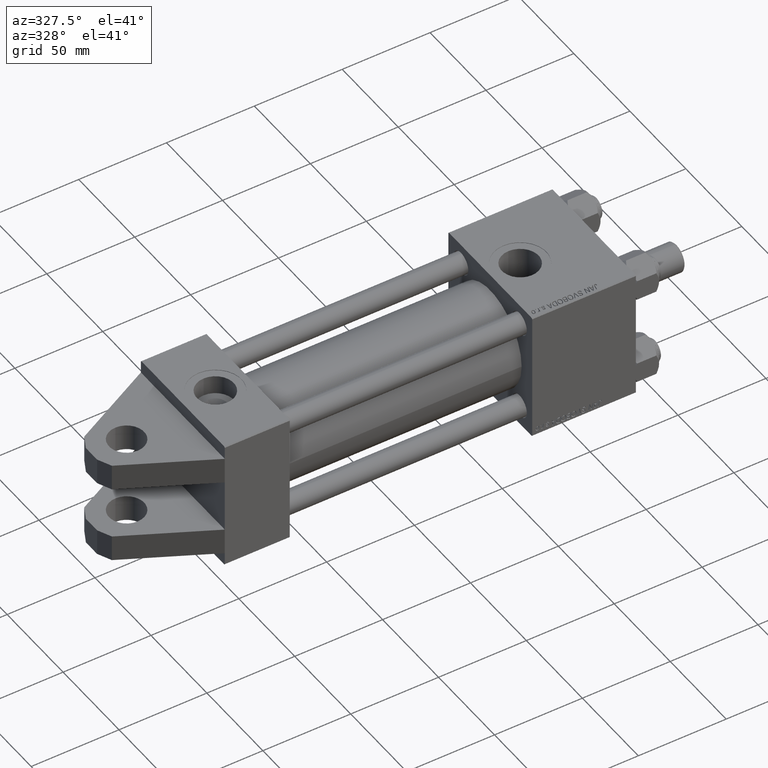
[diagram: clean part render]
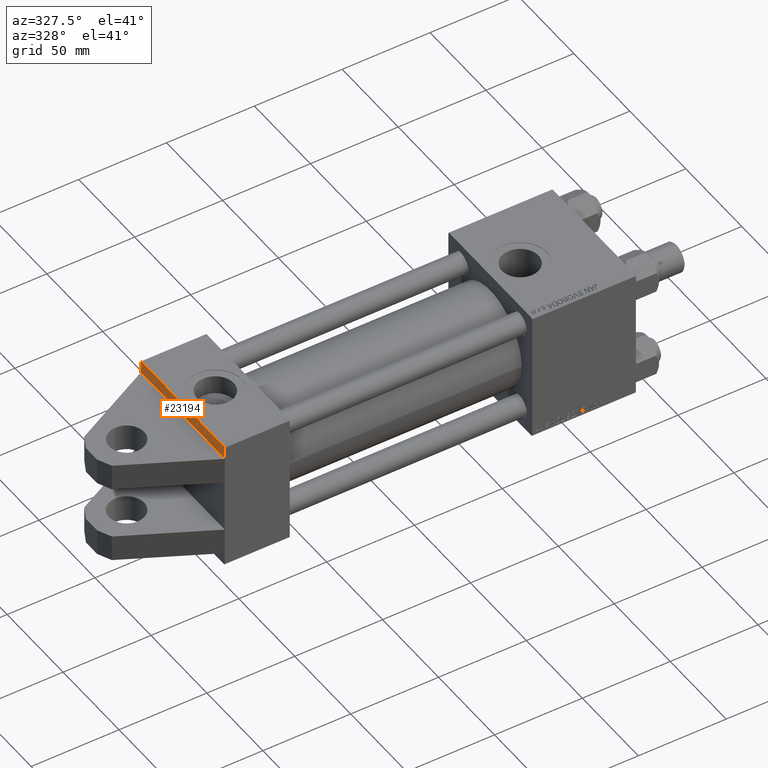
[diagram: same view with one face highlighted and labeled with its STEP entity id]
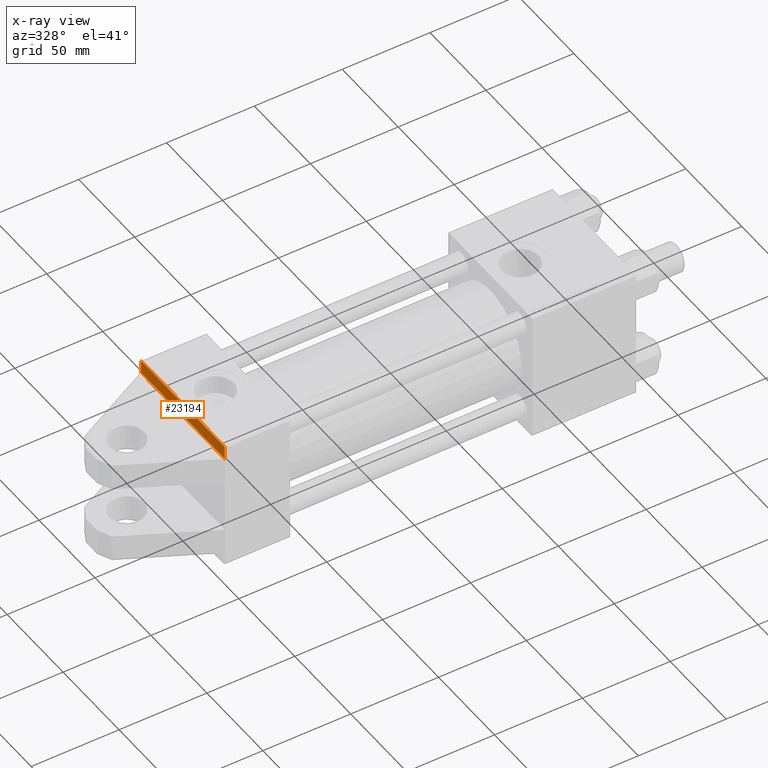
[diagram: x-ray of the same camera — body ghosted, the highlighted face saturated]
A machine part, auxiliary view. The second image highlights one B-rep face of the part: STEP entity #23194.
The next image is the same camera in x-ray: the body ghosted, the highlighted face saturated — about 0% of this face is hidden behind the body in this view.
In plain terms, the highlighted planar face has unit normal (-1, 0, -0).
Its self-contained STEP definition (entity closure, byte-faithful):
#464 = DIRECTION ( 'NONE',  ( -0.000000000000000000, 0.7071067811865474617, 0.7071067811865474617 ) ) ;
#585 = VERTEX_POINT ( 'NONE', #4168 ) ;
#1400 = CARTESIAN_POINT ( 'NONE',  ( 0.000000000000000000, -37.50000000000000711, 36.99999999999999289 ) ) ;
#1754 = VECTOR ( 'NONE', #51921, 1000.000000000000000 ) ;
#2162 = DIRECTION ( 'NONE',  ( 0.000000000000000000, 0.000000000000000000, -1.000000000000000000 ) ) ;
#3418 = VECTOR ( 'NONE', #464, 1000.000000000000114 ) ;
#4168 = CARTESIAN_POINT ( 'NONE',  ( 0.000000000000000000, -37.00000000000000711, 37.49999999999999289 ) ) ;
#4525 = VERTEX_POINT ( 'NONE', #47174 ) ;
#5417 = EDGE_CURVE ( 'NONE', #36524, #585, #40821, .T. ) ;
#6728 = DIRECTION ( 'NONE',  ( -0.000000000000000000, 0.000000000000000000, 1.000000000000000000 ) ) ;
#8374 = VECTOR ( 'NONE', #48611, 1000.000000000000000 ) ;
#9341 = LINE ( 'NONE', #21710, #47889 ) ;
#10770 = VECTOR ( 'NONE', #23887, 1000.000000000000000 ) ;
#12340 = LINE ( 'NONE', #35829, #1754 ) ;
#14295 = VERTEX_POINT ( 'NONE', #49032 ) ;
#17722 = ORIENTED_EDGE ( 'NONE', *, *, #32757, .T. ) ;
#19150 = LINE ( 'NONE', #27582, #10770 ) ;
#21710 = CARTESIAN_POINT ( 'NONE',  ( 0.000000000000000000, -37.24999999999975842, -37.25000000000027001 ) ) ;
#23194 = ADVANCED_FACE ( 'NONE', ( #50533 ), #45789, .T. ) ;
#23232 = ORIENTED_EDGE ( 'NONE', *, *, #38763, .F. ) ;
#23887 = DIRECTION ( 'NONE',  ( 0.000000000000000000, -1.000000000000000000, -9.251858538542971581E-17 ) ) ;
#24822 = ORIENTED_EDGE ( 'NONE', *, *, #27726, .F. ) ;
#26674 = CARTESIAN_POINT ( 'NONE',  ( 0.000000000000000000, -30.00000000000000000, 37.49999999999999289 ) ) ;
#27582 = CARTESIAN_POINT ( 'NONE',  ( 0.000000000000000000, 37.49999999999999289, 37.50000000000000000 ) ) ;
#27700 = EDGE_LOOP ( 'NONE', ( #37758, #17722, #48812, #23232, #32693, #24822 ) ) ;
#27726 = EDGE_CURVE ( 'NONE', #4525, #585, #19150, .T. ) ;
#29066 = CARTESIAN_POINT ( 'NONE',  ( 0.000000000000000000, 37.49999999999999289, -37.50000000000000000 ) ) ;
#30280 = EDGE_CURVE ( 'NONE', #35514, #14295, #9341, .T. ) ;
#30385 = CARTESIAN_POINT ( 'NONE',  ( 0.000000000000000000, -37.00000000000002132, -37.50000000000000711 ) ) ;
#32512 = LINE ( 'NONE', #29066, #8374 ) ;
#32638 = CARTESIAN_POINT ( 'NONE',  ( -0.000000000000000000, -37.25000000000000000, 37.25000000000000000 ) ) ;
#32693 = ORIENTED_EDGE ( 'NONE', *, *, #5417, .T. ) ;
#32757 = EDGE_CURVE ( 'NONE', #46220, #35514, #32512, .T. ) ;
#34432 = CARTESIAN_POINT ( 'NONE',  ( 0.000000000000000000, 0.000000000000000000, 0.000000000000000000 ) ) ;
#35514 = VERTEX_POINT ( 'NONE', #30385 ) ;
#35829 = CARTESIAN_POINT ( 'NONE',  ( 0.000000000000000000, -37.50000000000000711, 37.49999999999999289 ) ) ;
#36524 = VERTEX_POINT ( 'NONE', #1400 ) ;
#37758 = ORIENTED_EDGE ( 'NONE', *, *, #46256, .T. ) ;
#38311 = LINE ( 'NONE', #26674, #46674 ) ;
#38763 = EDGE_CURVE ( 'NONE', #36524, #14295, #12340, .T. ) ;
#40821 = LINE ( 'NONE', #32638, #3418 ) ;
#41245 = DIRECTION ( 'NONE',  ( 0.000000000000000000, -0.7071067811865524577, 0.7071067811865426878 ) ) ;
#41818 = DIRECTION ( 'NONE',  ( -1.000000000000000000, 0.000000000000000000, -0.000000000000000000 ) ) ;
#45789 = PLANE ( 'NONE',  #49361 ) ;
#45948 = CARTESIAN_POINT ( 'NONE',  ( 0.000000000000000000, -30.00000000000000000, -37.50000000000000711 ) ) ;
#46220 = VERTEX_POINT ( 'NONE', #45948 ) ;
#46256 = EDGE_CURVE ( 'NONE', #4525, #46220, #38311, .T. ) ;
#46674 = VECTOR ( 'NONE', #2162, 1000.000000000000000 ) ;
#47174 = CARTESIAN_POINT ( 'NONE',  ( 0.000000000000000000, -30.00000000000001421, 37.49999999999999289 ) ) ;
#47889 = VECTOR ( 'NONE', #41245, 1000.000000000000000 ) ;
#48611 = DIRECTION ( 'NONE',  ( 0.000000000000000000, -1.000000000000000000, -9.251858538542972814E-17 ) ) ;
#48812 = ORIENTED_EDGE ( 'NONE', *, *, #30280, .T. ) ;
#49032 = CARTESIAN_POINT ( 'NONE',  ( 0.000000000000000000, -37.50000000000000000, -37.00000000000003553 ) ) ;
#49361 = AXIS2_PLACEMENT_3D ( 'NONE', #34432, #41818, #6728 ) ;
#50533 = FACE_OUTER_BOUND ( 'NONE', #27700, .T. ) ;
#51921 = DIRECTION ( 'NONE',  ( 0.000000000000000000, 9.251858538542971581E-17, -1.000000000000000000 ) ) ;